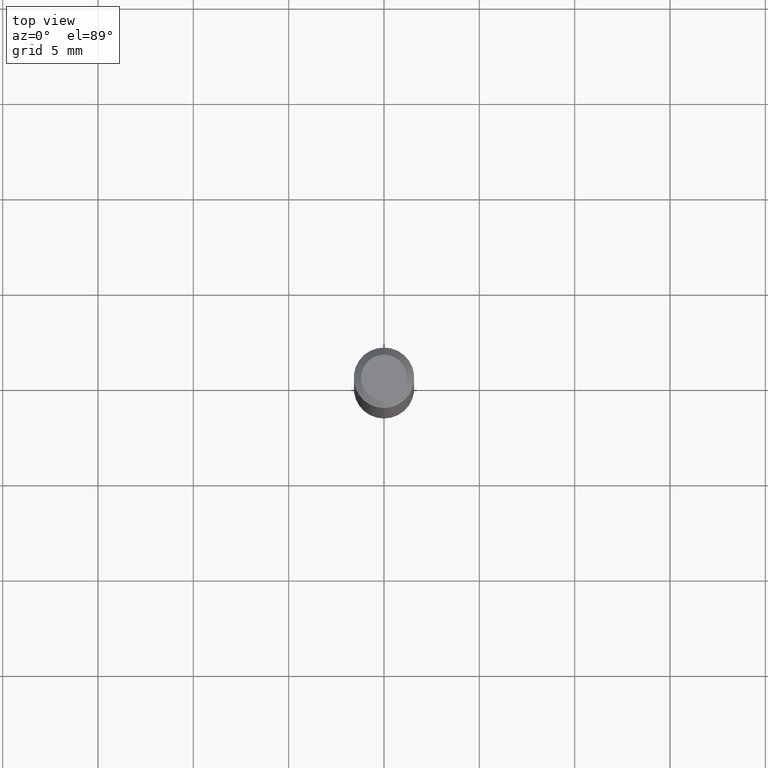
[diagram: clean part render]
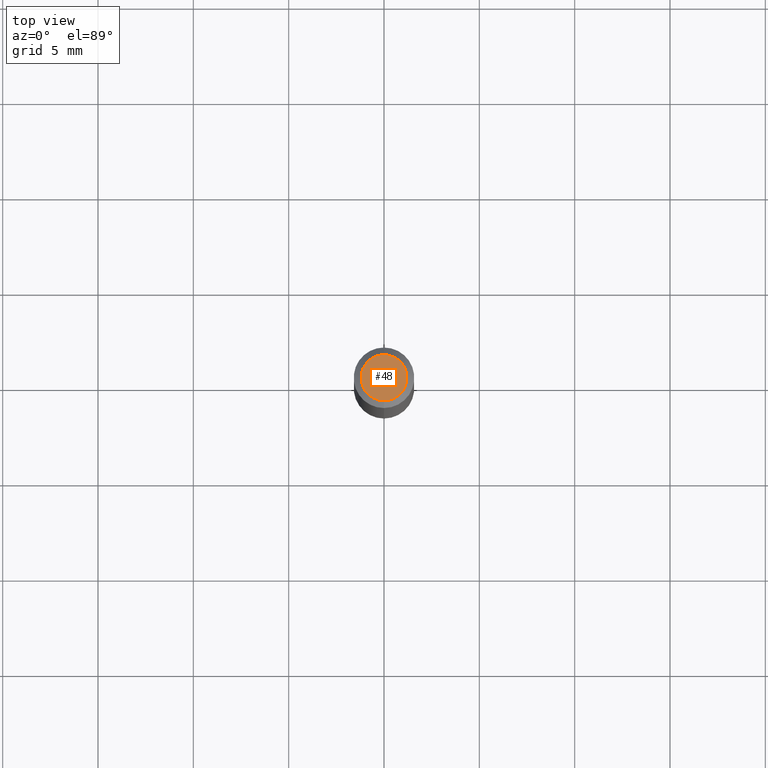
[diagram: same view with one face highlighted and labeled with its STEP entity id]
A machine part, top view. The second image highlights one B-rep face of the part: STEP entity #48.
In plain terms, the highlighted planar face has unit normal (0, -0, -1).
Its self-contained STEP definition (entity closure, byte-faithful):
#29 = FACE_OUTER_BOUND ( 'NONE', #499, .T. ) ;
#40 = EDGE_CURVE ( 'NONE', #269, #484, #308, .T. ) ;
#48 = ADVANCED_FACE ( 'NONE', ( #29 ), #182, .F. ) ;
#61 = CIRCLE ( 'NONE', #424, 0.04750000000000004219 ) ;
#102 = DIRECTION ( 'NONE',  ( -2.438888398687161749E-29, 3.500904856913780958E-15, 1.000000000000000000 ) ) ;
#110 = DIRECTION ( 'NONE',  ( -2.438888398687161749E-29, 3.500904856913780958E-15, 1.000000000000000000 ) ) ;
#119 = AXIS2_PLACEMENT_3D ( 'NONE', #458, #102, #461 ) ;
#150 = DIRECTION ( 'NONE',  ( 6.982962677686265922E-15, 1.000000000000000000, -3.500904856913780958E-15 ) ) ;
#182 = PLANE ( 'NONE',  #186 ) ;
#186 = AXIS2_PLACEMENT_3D ( 'NONE', #350, #502, #150 ) ;
#188 = ORIENTED_EDGE ( 'NONE', *, *, #40, .T. ) ;
#199 = EDGE_CURVE ( 'NONE', #484, #269, #61, .T. ) ;
#204 = CARTESIAN_POINT ( 'NONE',  ( 3.840629472727450339E-16, 0.04750000000000004219, -5.239320876657356674E-16 ) ) ;
#252 = CARTESIAN_POINT ( 'NONE',  ( -3.773273898774342241E-16, -0.04750000000000004219, -1.913461262589262082E-16 ) ) ;
#269 = VERTEX_POINT ( 'NONE', #204 ) ;
#272 = DIRECTION ( 'NONE',  ( -6.982962677686265133E-15, -1.000000000000000000, 3.500904856913780564E-15 ) ) ;
#308 = CIRCLE ( 'NONE', #119, 0.04750000000000004219 ) ;
#350 = CARTESIAN_POINT ( 'NONE',  ( 3.316907271900979054E-16, 0.04750000000000004219, -3.451125341845701985E-16 ) ) ;
#388 = ORIENTED_EDGE ( 'NONE', *, *, #199, .T. ) ;
#424 = AXIS2_PLACEMENT_3D ( 'NONE', #466, #110, #272 ) ;
#458 = CARTESIAN_POINT ( 'NONE',  ( 8.722418688872659723E-45, -1.252060486586731701E-30, -3.576391069623309378E-16 ) ) ;
#461 = DIRECTION ( 'NONE',  ( -6.982962677686265133E-15, -1.000000000000000000, 3.500904856913780564E-15 ) ) ;
#466 = CARTESIAN_POINT ( 'NONE',  ( 8.722418688872659723E-45, -1.252060486586731701E-30, -3.576391069623309378E-16 ) ) ;
#484 = VERTEX_POINT ( 'NONE', #252 ) ;
#499 = EDGE_LOOP ( 'NONE', ( #188, #388 ) ) ;
#502 = DIRECTION ( 'NONE',  ( 2.438888398687161469E-29, -3.500904856913780958E-15, -1.000000000000000000 ) ) ;